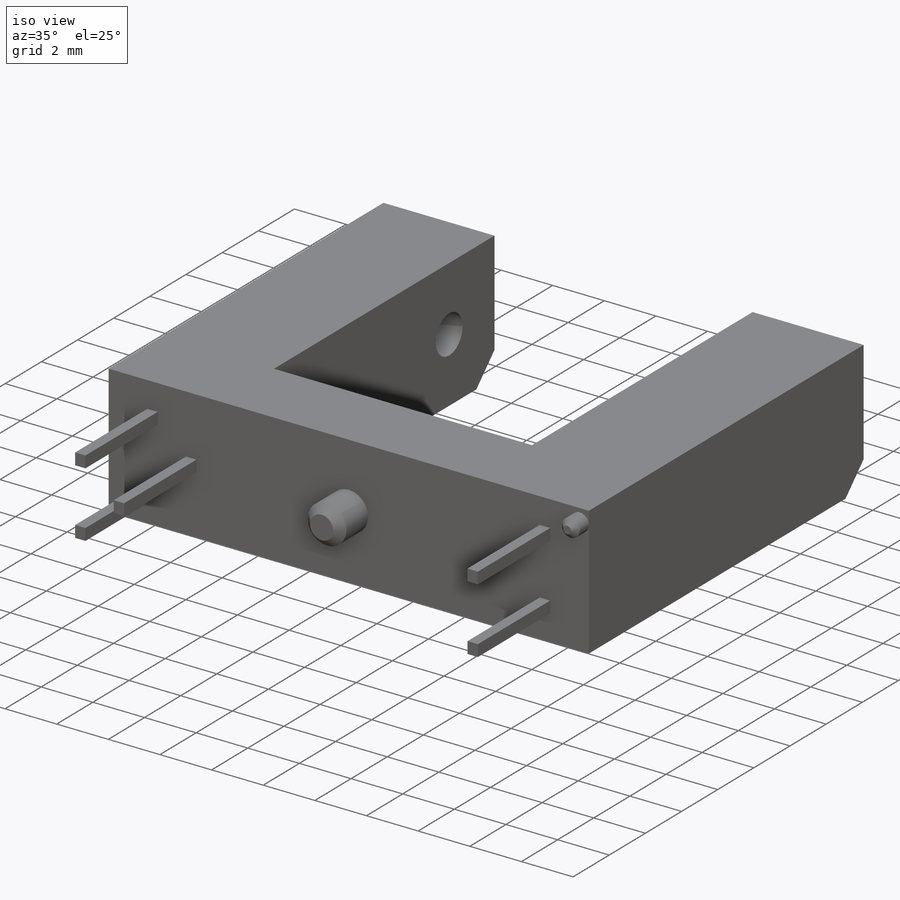
[diagram: iso view]
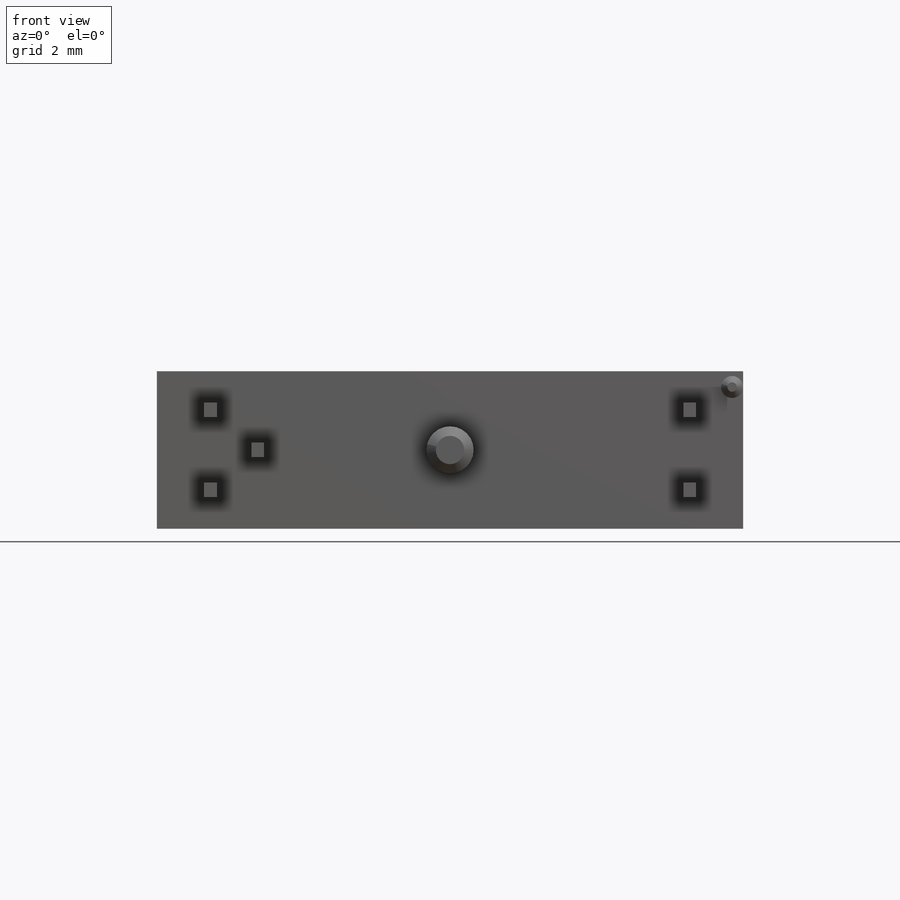
[diagram: front view]
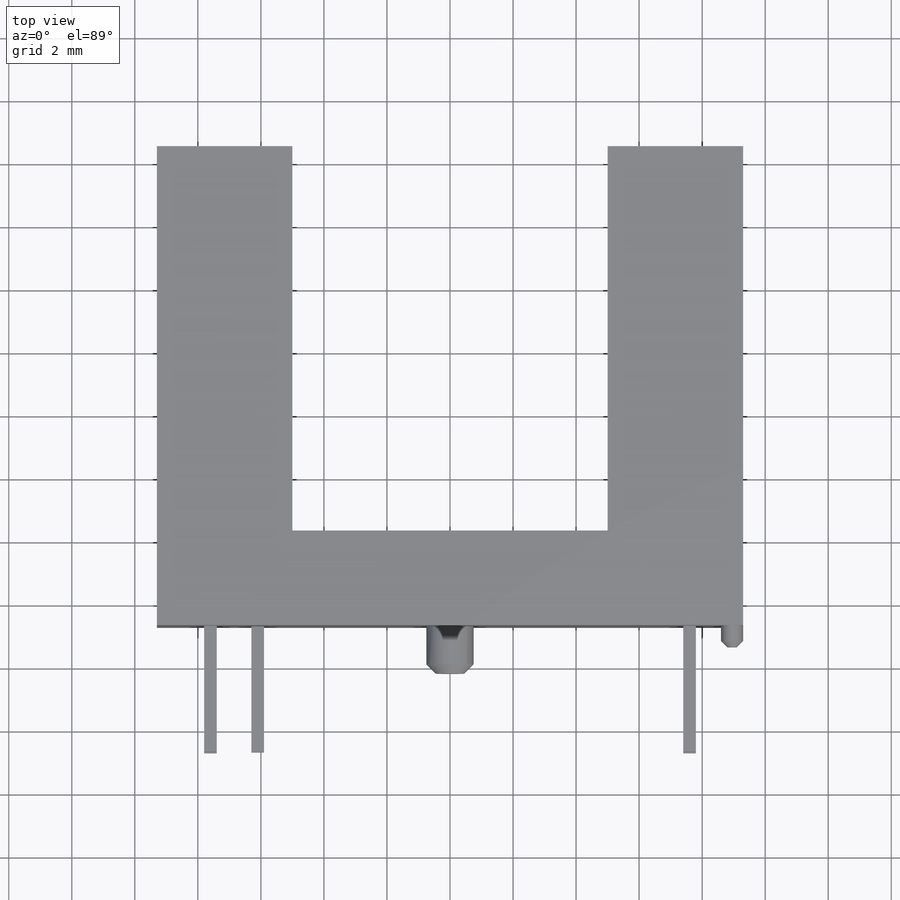
[diagram: top view]
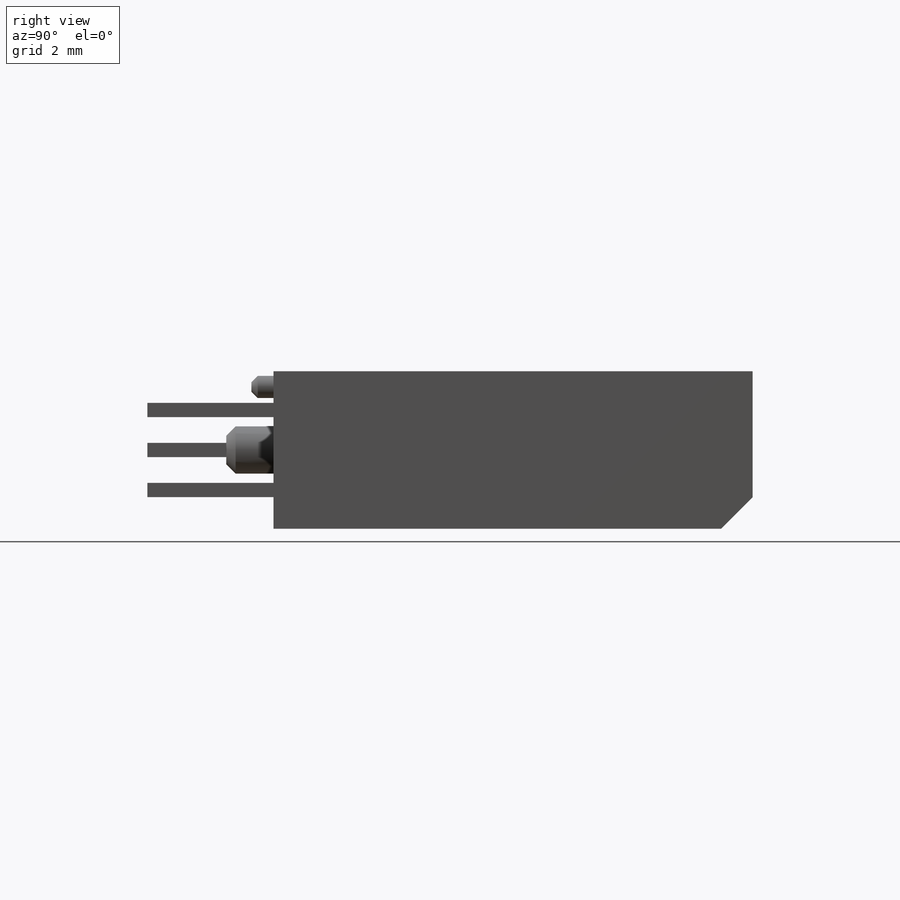
[diagram: right view]
SOLIDWORKS PART (.sldprt)
format: sldprt  version: not decoded by parser v0  size: 238,080 bytes
history: native  units: mm
features: sketch x5, extrude x4, chamfer x3, material x1, cut_extrude x1 (+16 scaffold rows collapsed)
feature tree (30):
  scaffold x16  (default folders/planes/origin — collapsed)
  material  "Material <not specified>"
  sketch  "Sketch1"  dims[D1=10.0mm D2=18.6mm D3=2.5mm D4=15.2mm D5=3.0mm]
  extrude  "Boss-Extrude1"  Depth=5mm
  sketch  "Sketch3"  dims[D1=1.5mm]
  extrude  "Boss-Extrude2"  Depth=1.5mm
  sketch  "Sketch4"  dims[D3=0.7mm D1=2.0mm D2=8.95mm]
  extrude  "Boss-Extrude3"  Depth=0.7mm
  chamfer  "Chamfer1"  Distance=0.2mm Angle=45deg
  chamfer  "Chamfer2"  Distance=0.3mm Angle=45deg
  chamfer  "Chamfer3"  Distance=1mm Angle=45deg
  sketch  "Sketch5"  dims[c1.D1=0.45mm c1.D2=~15.705766mm c2.D2=~0.108803deg c3.D2=0.4mm c3.D3=1.5mm c3.D4=2.54mm c3.D5=15.2mm]
  extrude  "Boss-Extrude4"  Depth=4mm
  sketch  "Sketch6"
  cut_extrude  "Cut-Extrude1"  Depth=1mm
decode coverage: 12 of 13 modeling features carry decoded parameters
note: ~ marks probable driven/reference dimensions
note: suppression state not decoded; provenance and decode notes live in map.json
